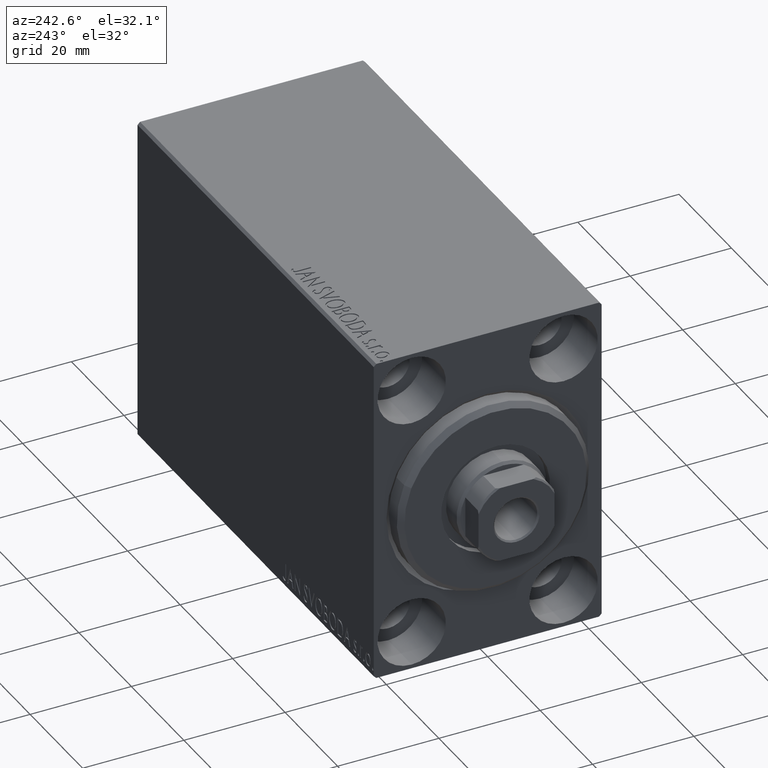
[diagram: clean part render]
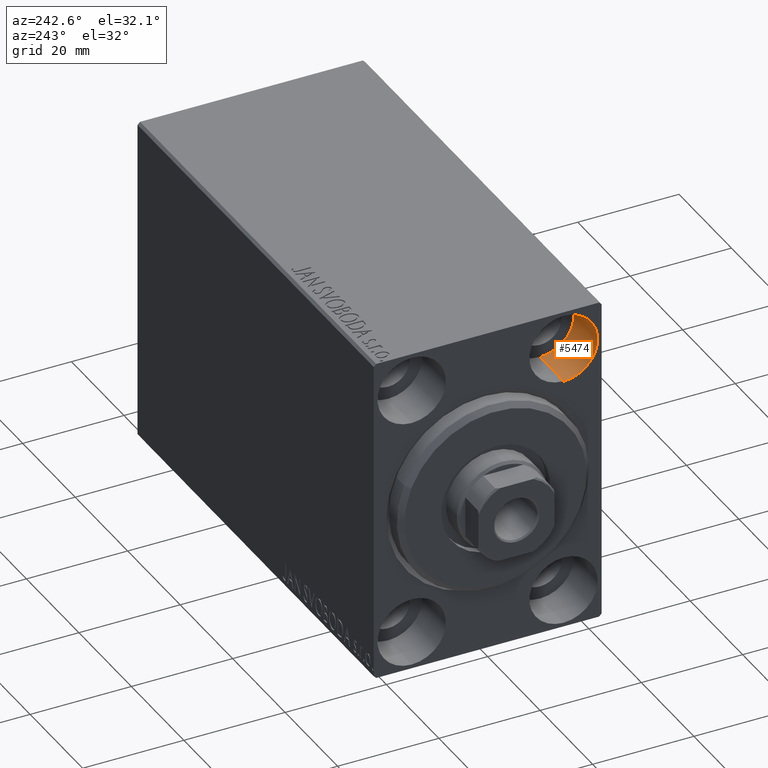
[diagram: same view with one face highlighted and labeled with its STEP entity id]
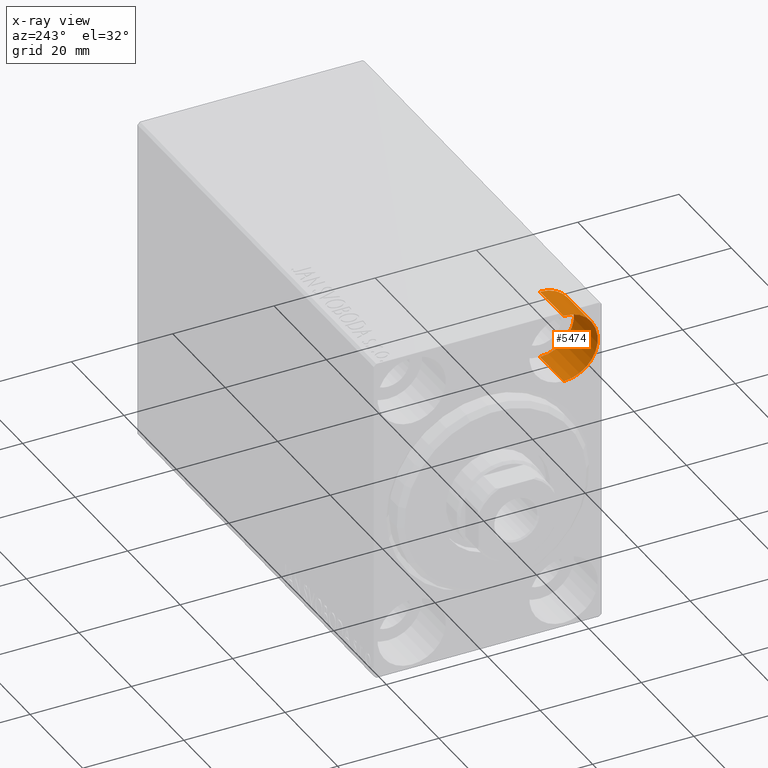
[diagram: x-ray of the same camera — body ghosted, the highlighted face saturated]
A machine part, auxiliary view. The second image highlights one B-rep face of the part: STEP entity #5474.
The next image is the same camera in x-ray: the body ghosted, the highlighted face saturated — about 0% of this face is hidden behind the body in this view.
In plain terms, the highlighted cylindrical surface (partial cylindrical patch) has radius 6.75 mm, axis along (-1, -0, -0).
Its self-contained STEP definition (entity closure, byte-faithful):
#37 = CARTESIAN_POINT ( 'NONE',  ( 9.000000000000000000, -14.99999999999999645, 25.00000000000000000 ) ) ;
#253 = DIRECTION ( 'NONE',  ( 0.000000000000000000, 0.000000000000000000, 1.000000000000000000 ) ) ;
#992 = EDGE_CURVE ( 'NONE', #29338, #34676, #36954, .T. ) ;
#2837 = CARTESIAN_POINT ( 'NONE',  ( 9.000000000000000000, -14.99999999999999645, 18.25000000000000355 ) ) ;
#3279 = CARTESIAN_POINT ( 'NONE',  ( 9.000000000000000000, -14.99999999999999645, 25.00000000000000000 ) ) ;
#4824 = VERTEX_POINT ( 'NONE', #28082 ) ;
#5474 = ADVANCED_FACE ( 'NONE', ( #37259 ), #30827, .F. ) ;
#5826 = LINE ( 'NONE', #29530, #16976 ) ;
#5899 = AXIS2_PLACEMENT_3D ( 'NONE', #37, #6899, #253 ) ;
#6007 = ORIENTED_EDGE ( 'NONE', *, *, #21562, .F. ) ;
#6899 = DIRECTION ( 'NONE',  ( -1.000000000000000000, -0.000000000000000000, -0.000000000000000000 ) ) ;
#7566 = ORIENTED_EDGE ( 'NONE', *, *, #27878, .F. ) ;
#9235 = AXIS2_PLACEMENT_3D ( 'NONE', #3279, #39849, #26994 ) ;
#11466 = DIRECTION ( 'NONE',  ( 0.000000000000000000, 0.000000000000000000, 1.000000000000000000 ) ) ;
#12725 = CIRCLE ( 'NONE', #37473, 6.749999999999999112 ) ;
#14566 = DIRECTION ( 'NONE',  ( -1.000000000000000000, 0.000000000000000000, 0.000000000000000000 ) ) ;
#14951 = CARTESIAN_POINT ( 'NONE',  ( 0.000000000000000000, -14.99999999999999645, 18.25000000000000355 ) ) ;
#16573 = DIRECTION ( 'NONE',  ( -1.000000000000000000, -0.000000000000000000, -0.000000000000000000 ) ) ;
#16976 = VECTOR ( 'NONE', #18668, 1000.000000000000000 ) ;
#18668 = DIRECTION ( 'NONE',  ( -1.000000000000000000, -0.000000000000000000, -0.000000000000000000 ) ) ;
#21562 = EDGE_CURVE ( 'NONE', #41873, #4824, #5826, .T. ) ;
#25301 = EDGE_CURVE ( 'NONE', #34676, #4824, #12725, .T. ) ;
#26994 = DIRECTION ( 'NONE',  ( 0.000000000000000000, 0.000000000000000000, 1.000000000000000000 ) ) ;
#27878 = EDGE_CURVE ( 'NONE', #29338, #41873, #31865, .T. ) ;
#28082 = CARTESIAN_POINT ( 'NONE',  ( 0.000000000000000000, -14.99999999999999645, 31.75000000000000000 ) ) ;
#29338 = VERTEX_POINT ( 'NONE', #36428 ) ;
#29530 = CARTESIAN_POINT ( 'NONE',  ( 9.000000000000000000, -14.99999999999999645, 31.75000000000000000 ) ) ;
#30286 = CARTESIAN_POINT ( 'NONE',  ( 9.000000000000000000, -14.99999999999999645, 31.75000000000000000 ) ) ;
#30827 = CYLINDRICAL_SURFACE ( 'NONE', #5899, 6.749999999999999112 ) ;
#31228 = ORIENTED_EDGE ( 'NONE', *, *, #992, .T. ) ;
#31865 = CIRCLE ( 'NONE', #9235, 6.749999999999999112 ) ;
#32584 = EDGE_LOOP ( 'NONE', ( #7566, #31228, #39415, #6007 ) ) ;
#34676 = VERTEX_POINT ( 'NONE', #14951 ) ;
#34725 = CARTESIAN_POINT ( 'NONE',  ( 0.000000000000000000, -14.99999999999999645, 25.00000000000000000 ) ) ;
#36428 = CARTESIAN_POINT ( 'NONE',  ( 9.000000000000000000, -14.99999999999999645, 18.25000000000000355 ) ) ;
#36954 = LINE ( 'NONE', #2837, #42564 ) ;
#37259 = FACE_OUTER_BOUND ( 'NONE', #32584, .T. ) ;
#37473 = AXIS2_PLACEMENT_3D ( 'NONE', #34725, #14566, #11466 ) ;
#39415 = ORIENTED_EDGE ( 'NONE', *, *, #25301, .T. ) ;
#39849 = DIRECTION ( 'NONE',  ( -1.000000000000000000, 0.000000000000000000, 0.000000000000000000 ) ) ;
#41873 = VERTEX_POINT ( 'NONE', #30286 ) ;
#42564 = VECTOR ( 'NONE', #16573, 1000.000000000000000 ) ;